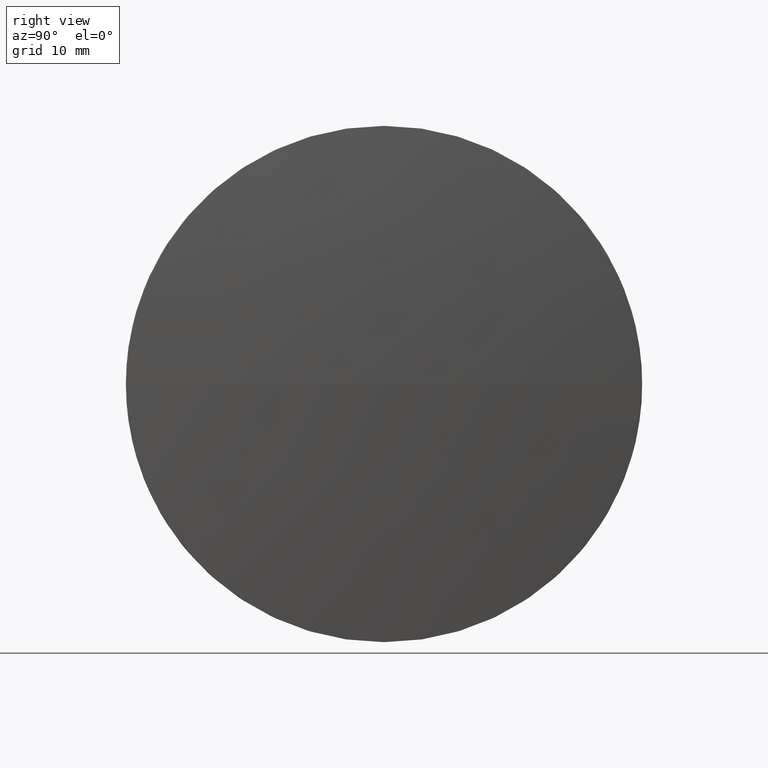
[diagram: clean part render]
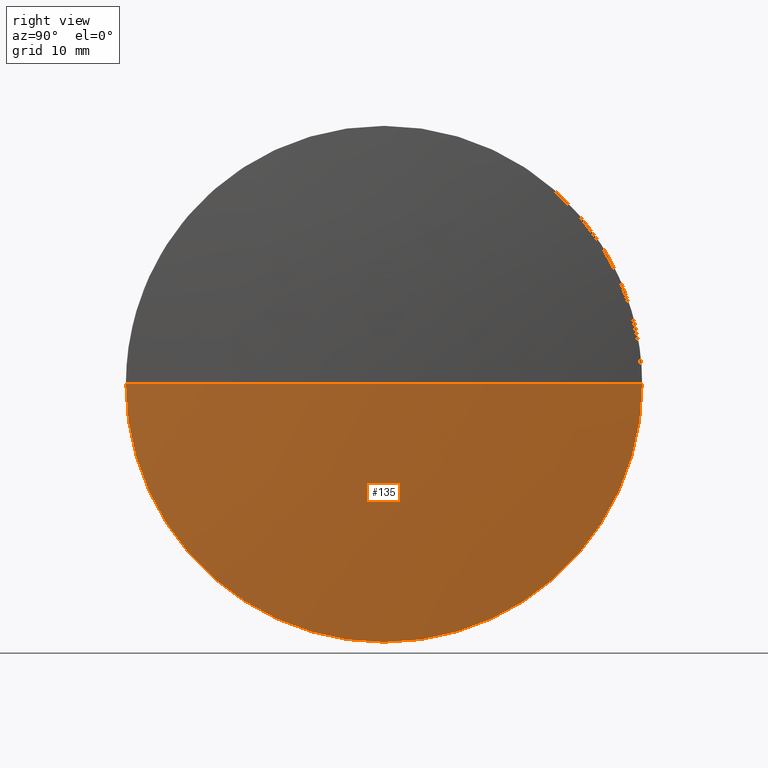
[diagram: same view with one face highlighted and labeled with its STEP entity id]
A machine part, right view. The second image highlights one B-rep face of the part: STEP entity #135.
In plain terms, the highlighted spherical surface has radius 258.87 mm.
Its self-contained STEP definition (entity closure, byte-faithful):
#2 = VERTEX_POINT ( 'NONE', #138 ) ;
#3 = AXIS2_PLACEMENT_3D ( 'NONE', #9, #176, #63 ) ;
#9 = CARTESIAN_POINT ( 'NONE',  ( 453.5393403652467400, 83.03950815417408600, 0.0000000000000000000 ) ) ;
#13 = DIRECTION ( 'NONE',  ( 0.0000000000000000000, 1.000000000000000000, 0.0000000000000000000 ) ) ;
#27 = DIRECTION ( 'NONE',  ( -1.000000000000000000, -0.0000000000000000000, -0.0000000000000000000 ) ) ;
#28 = DIRECTION ( 'NONE',  ( 0.0000000000000000000, 1.000000000000000000, 1.224646799147353200E-016 ) ) ;
#30 = DIRECTION ( 'NONE',  ( 0.0000000000000000000, 1.224646799147353200E-016, -1.000000000000000000 ) ) ;
#31 = DIRECTION ( 'NONE',  ( 0.0000000000000000000, 0.0000000000000000000, 1.000000000000000000 ) ) ;
#39 = CARTESIAN_POINT ( 'NONE',  ( 453.5393403652466900, 108.0395081541740200, 0.0000000000000000000 ) ) ;
#42 = FACE_OUTER_BOUND ( 'NONE', #149, .T. ) ;
#43 = ORIENTED_EDGE ( 'NONE', *, *, #174, .F. ) ;
#48 = CIRCLE ( 'NONE', #106, 258.8694628099185000 ) ;
#53 = CIRCLE ( 'NONE', #139, 258.8694628099185000 ) ;
#55 = ORIENTED_EDGE ( 'NONE', *, *, #171, .F. ) ;
#57 = AXIS2_PLACEMENT_3D ( 'NONE', #158, #27, #31 ) ;
#63 = DIRECTION ( 'NONE',  ( 0.0000000000000000000, 0.0000000000000000000, 1.000000000000000000 ) ) ;
#72 = CARTESIAN_POINT ( 'NONE',  ( 195.8798775553282500, 83.03950815417367400, 0.0000000000000000000 ) ) ;
#76 = AXIS2_PLACEMENT_3D ( 'NONE', #72, #146, #13 ) ;
#82 = CIRCLE ( 'NONE', #3, 24.99999999999999300 ) ;
#83 = CARTESIAN_POINT ( 'NONE',  ( 195.8798775553282500, 83.03950815417367400, 0.0000000000000000000 ) ) ;
#98 = VERTEX_POINT ( 'NONE', #179 ) ;
#101 = DIRECTION ( 'NONE',  ( -0.0000000000000000000, 0.0000000000000000000, 1.000000000000000000 ) ) ;
#106 = AXIS2_PLACEMENT_3D ( 'NONE', #142, #30, #28 ) ;
#111 = CARTESIAN_POINT ( 'NONE',  ( 453.5393403652467400, 83.03950815417408600, -24.99999999999999300 ) ) ;
#123 = VERTEX_POINT ( 'NONE', #39 ) ;
#135 = ADVANCED_FACE ( 'NONE', ( #42 ), #167, .T. ) ;
#137 = VERTEX_POINT ( 'NONE', #111 ) ;
#138 = CARTESIAN_POINT ( 'NONE',  ( 453.5393403652466900, 58.03950815417373100, -3.061616997868374800E-015 ) ) ;
#139 = AXIS2_PLACEMENT_3D ( 'NONE', #83, #101, #160 ) ;
#140 = EDGE_CURVE ( 'NONE', #137, #2, #156, .T. ) ;
#142 = CARTESIAN_POINT ( 'NONE',  ( 195.8798775553282500, 83.03950815417367400, 0.0000000000000000000 ) ) ;
#146 = DIRECTION ( 'NONE',  ( -0.0000000000000000000, 0.0000000000000000000, -1.000000000000000000 ) ) ;
#147 = ORIENTED_EDGE ( 'NONE', *, *, #140, .F. ) ;
#149 = EDGE_LOOP ( 'NONE', ( #43, #173, #147, #55 ) ) ;
#152 = EDGE_CURVE ( 'NONE', #98, #2, #48, .T. ) ;
#156 = CIRCLE ( 'NONE', #57, 24.99999999999999300 ) ;
#158 = CARTESIAN_POINT ( 'NONE',  ( 453.5393403652467400, 83.03950815417408600, 0.0000000000000000000 ) ) ;
#160 = DIRECTION ( 'NONE',  ( 1.000000000000000000, 0.0000000000000000000, 0.0000000000000000000 ) ) ;
#167 = SPHERICAL_SURFACE ( 'NONE', #76, 258.8694628099185000 ) ;
#171 = EDGE_CURVE ( 'NONE', #123, #137, #82, .T. ) ;
#173 = ORIENTED_EDGE ( 'NONE', *, *, #152, .T. ) ;
#174 = EDGE_CURVE ( 'NONE', #98, #123, #53, .T. ) ;
#176 = DIRECTION ( 'NONE',  ( -1.000000000000000000, -0.0000000000000000000, -0.0000000000000000000 ) ) ;
#179 = CARTESIAN_POINT ( 'NONE',  ( 454.7493403652467200, 83.03950815417368900, 0.0000000000000000000 ) ) ;